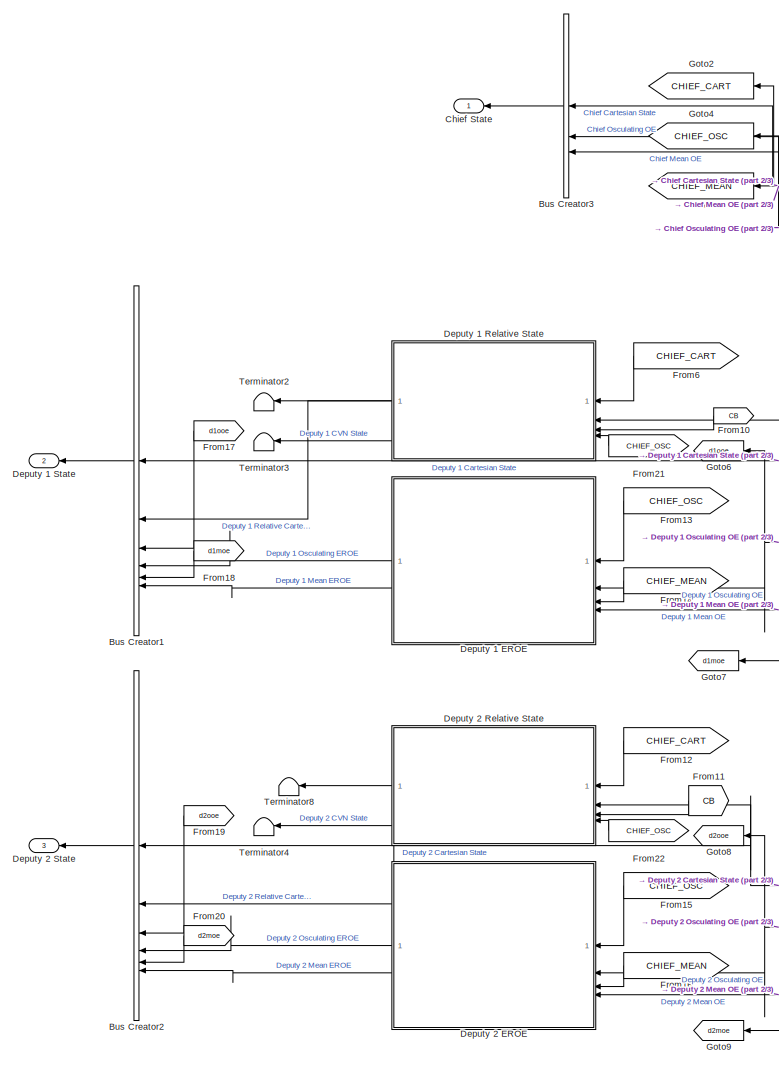
[diagram: root canvas - part 1/3, left side, full height]
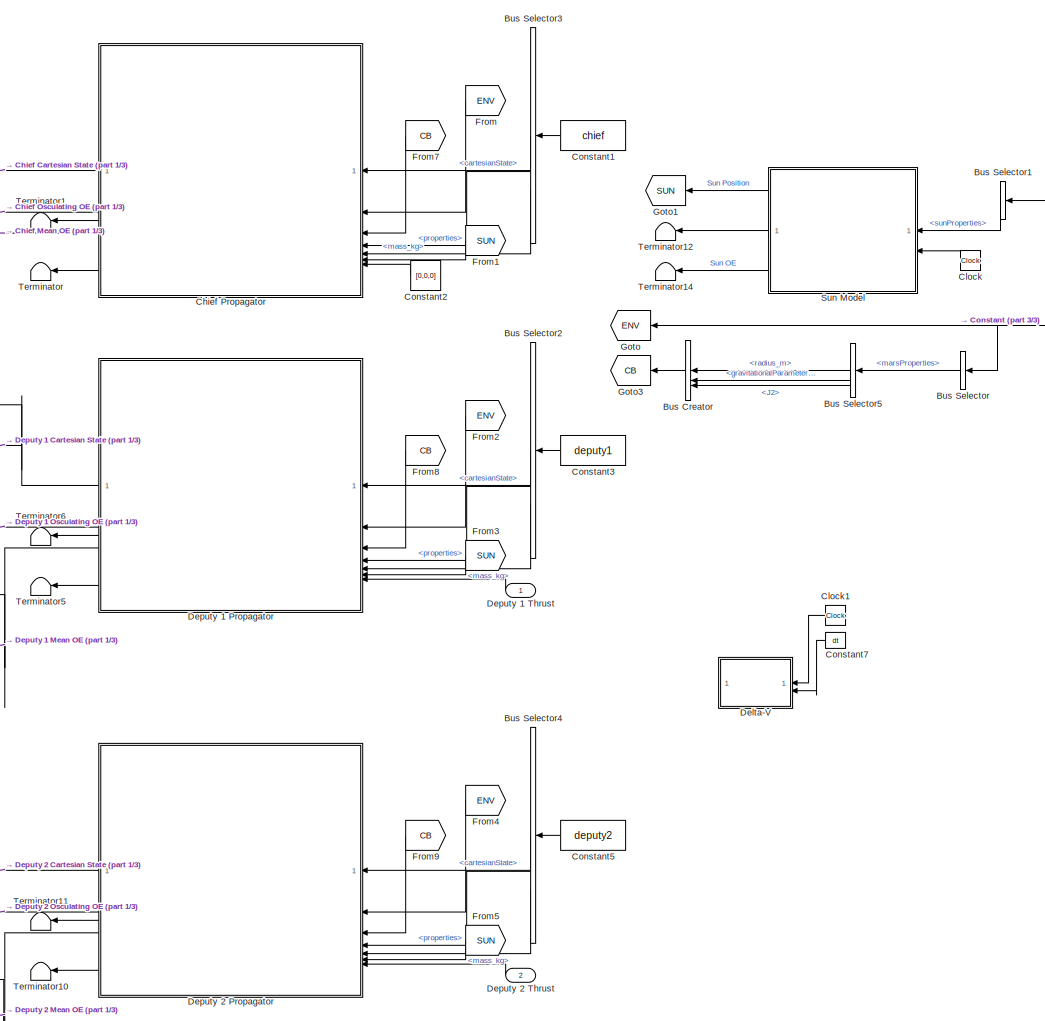
[diagram: root canvas - part 2/3, center side, full height]
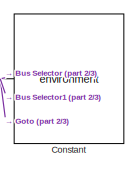
[diagram: root canvas - part 3/3, top right region]
MODEL slx_c1429a69bf25
KIND model
CONFIG AbsTol = auto
CONFIG EnableMultiTasking = off
CONFIG FixedStep = dt
CONFIG MaxStep = max_step_size
CONFIG MinStep = auto
CONFIG RelTol = relative_tolerance
CONFIG SampleTimeConstraint = Unconstrained
CONFIG SolverName = ode4
CONFIG StartTime = 0.0
CONFIG StopTime = t_duration
BLOCK [BusCreator] Bus Creator
  DisplayOption = bar
  InheritFromInputs = off
  Inputs = 3
  NonVirtualBus = on
  OutDataTypeStr = Bus: planetProperties
BLOCK [BusCreator] Bus Creator1
  DisplayOption = bar
  InheritFromInputs = off
  Inputs = 6
  NonVirtualBus = on
  OutDataTypeStr = Bus: deputy1state
BLOCK [BusCreator] Bus Creator2
  DisplayOption = bar
  InheritFromInputs = off
  Inputs = 6
  NonVirtualBus = on
  OutDataTypeStr = Bus: deputy2state
BLOCK [BusCreator] Bus Creator3
  DisplayOption = bar
  InheritFromInputs = off
  Inputs = 3
  NonVirtualBus = on
  OutDataTypeStr = Bus: chiefState
BLOCK [BusSelector] Bus Selector
  OutputSignals = marsProperties
BLOCK [BusSelector] Bus Selector1
  OutputSignals = sunProperties
BLOCK [BusSelector] Bus Selector2
  OutputSignals = initialConditions.cartesianState,properties,initialConditions.mass_kg
BLOCK [BusSelector] Bus Selector3
  OutputSignals = initialConditions.cartesianState,properties,initialConditions.mass_kg
BLOCK [BusSelector] Bus Selector4
  OutputSignals = initialConditions.cartesianState,properties,initialConditions.mass_kg
BLOCK [BusSelector] Bus Selector5
  OutputSignals = radius_m,gravitationalParameter_m3_s2,J2
BLOCK [ModelReference] Chief Propagator
  ModelNameDialog = PerturbedCartesianOrbitPropagator
  ModelReferenceVersion = 1.197
BLOCK [Outport] Chief State
  BusOutputAsStruct = on
  OutDataTypeStr = Bus: chiefState
BLOCK [Clock] Clock
BLOCK [Clock] Clock1
  Commented = on
BLOCK [Constant] Constant
  OutDataTypeStr = Bus: environmentBus
  Value = environment
BLOCK [Constant] Constant1
  OutDataTypeStr = Bus: chiefBus
  Value = chief
BLOCK [Constant] Constant2
  Value = [0,0,0]
BLOCK [Constant] Constant3
  OutDataTypeStr = Bus: deputy1Bus
  Value = deputy1
BLOCK [Constant] Constant5
  OutDataTypeStr = Bus: deputy2Bus
  Value = deputy2
BLOCK [Constant] Constant7
  Commented = on
  Value = dt
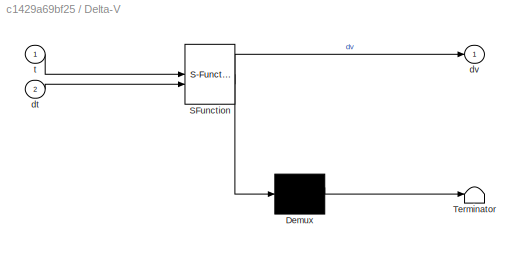
BLOCK [SubSystem] Delta-V
  Commented = on
  ErrorFcn = Stateflow.Translate.translate
  LibrarySourceBlock = simulink/User-Defined\nFunctions/MATLAB Function
  PermitHierarchicalResolution = ExplicitOnly
  SFBlockType = MATLAB Function
  TreatAsAtomicUnit = on
BLOCK [Demux] Delta-V/ Demux 
  Outputs = 1
BLOCK [S-Function] Delta-V/ SFunction 
  EnableBusSupport = on
  FunctionName = sf_sfun
  PortCounts = [2 2]
  SFcnIsStateOwnerBlock = off
  SFunctionDeploymentMode = off
  Tag = Stateflow S-Function 2
BLOCK [Terminator] Delta-V/ Terminator 
BLOCK [Inport] Delta-V/dt
  Port = 2
BLOCK [Outport] Delta-V/dv
BLOCK [Inport] Delta-V/t
BLOCK [ModelReference] Deputy 1 EROE
  ModelNameDialog = singularEROE
  ModelReferenceVersion = 1.18
BLOCK [ModelReference] Deputy 1 Propagator
  ModelNameDialog = PerturbedCartesianOrbitPropagator
  ModelReferenceVersion = 1.197
BLOCK [ModelReference] Deputy 1 Relative State
  ModelNameDialog = cartesianDifference
  ModelReferenceVersion = 1.42
BLOCK [Outport] Deputy 1 State
  BusOutputAsStruct = on
  OutDataTypeStr = Bus: deputy1state
  Port = 2
BLOCK [Inport] Deputy 1 Thrust
BLOCK [ModelReference] Deputy 2 EROE
  ModelNameDialog = singularEROE
  ModelReferenceVersion = 1.18
BLOCK [ModelReference] Deputy 2 Propagator
  ModelNameDialog = PerturbedCartesianOrbitPropagator
  ModelReferenceVersion = 1.197
BLOCK [ModelReference] Deputy 2 Relative State
  ModelNameDialog = cartesianDifference
  ModelReferenceVersion = 1.42
BLOCK [Outport] Deputy 2 State
  BusOutputAsStruct = on
  OutDataTypeStr = Bus: deputy2state
  Port = 3
BLOCK [Inport] Deputy 2 Thrust
  Port = 2
BLOCK [From] From
  GotoTag = ENV
BLOCK [From] From1
  GotoTag = SUN
BLOCK [From] From10
  GotoTag = CB
BLOCK [From] From11
  GotoTag = CB
BLOCK [From] From12
  GotoTag = CHIEF_CART
BLOCK [From] From13
  GotoTag = CHIEF_OSC
BLOCK [From] From14
  GotoTag = CHIEF_MEAN
BLOCK [From] From15
  GotoTag = CHIEF_OSC
BLOCK [From] From16
  GotoTag = CHIEF_MEAN
BLOCK [From] From17
  GotoTag = d1ooe
BLOCK [From] From18
  GotoTag = d1moe
BLOCK [From] From19
  GotoTag = d2ooe
BLOCK [From] From2
  GotoTag = ENV
BLOCK [From] From20
  GotoTag = d2moe
BLOCK [From] From21
  GotoTag = CHIEF_OSC
BLOCK [From] From22
  GotoTag = CHIEF_OSC
BLOCK [From] From3
  GotoTag = SUN
BLOCK [From] From4
  GotoTag = ENV
BLOCK [From] From5
  GotoTag = SUN
BLOCK [From] From6
  GotoTag = CHIEF_CART
BLOCK [From] From7
  GotoTag = CB
BLOCK [From] From8
  GotoTag = CB
BLOCK [From] From9
  GotoTag = CB
BLOCK [Goto] Goto
  GotoTag = ENV
BLOCK [Goto] Goto1
  GotoTag = SUN
BLOCK [Goto] Goto2
  GotoTag = CHIEF_CART
BLOCK [Goto] Goto3
  GotoTag = CB
BLOCK [Goto] Goto4
  GotoTag = CHIEF_OSC
BLOCK [Goto] Goto5
  GotoTag = CHIEF_MEAN
BLOCK [Goto] Goto6
  GotoTag = d1ooe
BLOCK [Goto] Goto7
  GotoTag = d1moe
BLOCK [Goto] Goto8
  GotoTag = d2ooe
BLOCK [Goto] Goto9
  GotoTag = d2moe
BLOCK [ModelReference] Sun Model
  ModelNameDialog = sun
  ModelReferenceVersion = 1.22
BLOCK [Terminator] Terminator
BLOCK [Terminator] Terminator1
BLOCK [Terminator] Terminator10
BLOCK [Terminator] Terminator11
BLOCK [Terminator] Terminator12
BLOCK [Terminator] Terminator14
BLOCK [Terminator] Terminator2
BLOCK [Terminator] Terminator3
BLOCK [Terminator] Terminator4
BLOCK [Terminator] Terminator5
BLOCK [Terminator] Terminator6
BLOCK [Terminator] Terminator8
LINE Bus Creator1:1 -> Deputy 1 State:1
LINE Bus Creator2:1 -> Deputy 2 State:1
LINE Bus Creator3:1 -> Chief State:1
LINE Bus Creator:1 -> Goto3:1
LINE Bus Selector1:1 -> Sun Model:1
LINE Bus Selector2:1 -> Deputy 1 Propagator:1
LINE Bus Selector2:2 -> Deputy 1 Propagator:4
LINE Bus Selector2:3 -> Deputy 1 Propagator:5
LINE Bus Selector3:1 -> Chief Propagator:1
LINE Bus Selector3:2 -> Chief Propagator:4
LINE Bus Selector3:3 -> Chief Propagator:5
LINE Bus Selector4:1 -> Deputy 2 Propagator:1
LINE Bus Selector4:2 -> Deputy 2 Propagator:4
LINE Bus Selector4:3 -> Deputy 2 Propagator:5
LINE Bus Selector5:1 -> Bus Creator:1
LINE Bus Selector5:2 -> Bus Creator:2
LINE Bus Selector5:3 -> Bus Creator:3
LINE Bus Selector:1 -> Bus Selector5:1
NET Chief Propagator:1 -> Bus Creator3:1, Goto2:1
NET Chief Propagator:2 -> Bus Creator3:2, Goto4:1
NET Chief Propagator:3 -> Bus Creator3:3, Goto5:1
LINE Chief Propagator:4 -> Terminator1:1
LINE Chief Propagator:5 -> Terminator:1
LINE Clock1:1 -> Delta-V:1
LINE Clock:1 -> Sun Model:2
LINE Constant1:1 -> Bus Selector3:1
LINE Constant2:1 -> Chief Propagator:7
LINE Constant3:1 -> Bus Selector2:1
LINE Constant5:1 -> Bus Selector4:1
LINE Constant7:1 -> Delta-V:2
NET Constant:1 -> Bus Selector1:1, Bus Selector:1, Goto:1
LINE Deputy 1 EROE:1 -> Bus Creator1:4
LINE Deputy 1 EROE:2 -> Bus Creator1:6
NET Deputy 1 Propagator:1 -> Bus Creator1:1, Deputy 1 Relative State:2
NET Deputy 1 Propagator:2 -> Deputy 1 EROE:2, Goto6:1
NET Deputy 1 Propagator:3 -> Deputy 1 EROE:4, Goto7:1
LINE Deputy 1 Propagator:4 -> Terminator6:1
LINE Deputy 1 Propagator:5 -> Terminator5:1
LINE Deputy 1 Relative State:1 -> Bus Creator1:2
LINE Deputy 1 Relative State:2 -> Terminator2:1
LINE Deputy 1 Relative State:3 -> Terminator3:1
LINE Deputy 1 Thrust:1 -> Deputy 1 Propagator:7
LINE Deputy 2 EROE:1 -> Bus Creator2:4
LINE Deputy 2 EROE:2 -> Bus Creator2:6
NET Deputy 2 Propagator:1 -> Bus Creator2:1, Deputy 2 Relative State:2
NET Deputy 2 Propagator:2 -> Deputy 2 EROE:2, Goto8:1
NET Deputy 2 Propagator:3 -> Deputy 2 EROE:4, Goto9:1
LINE Deputy 2 Propagator:4 -> Terminator11:1
LINE Deputy 2 Propagator:5 -> Terminator10:1
LINE Deputy 2 Relative State:1 -> Bus Creator2:2
LINE Deputy 2 Relative State:2 -> Terminator8:1
LINE Deputy 2 Relative State:3 -> Terminator4:1
LINE Deputy 2 Thrust:1 -> Deputy 2 Propagator:7
LINE From10:1 -> Deputy 1 Relative State:3
LINE From11:1 -> Deputy 2 Relative State:3
LINE From12:1 -> Deputy 2 Relative State:1
LINE From13:1 -> Deputy 1 EROE:1
LINE From14:1 -> Deputy 1 EROE:3
LINE From15:1 -> Deputy 2 EROE:1
LINE From16:1 -> Deputy 2 EROE:3
LINE From17:1 -> Bus Creator1:3
LINE From18:1 -> Bus Creator1:5
LINE From19:1 -> Bus Creator2:3
LINE From1:1 -> Chief Propagator:6
LINE From20:1 -> Bus Creator2:5
LINE From21:1 -> Deputy 1 Relative State:4
LINE From22:1 -> Deputy 2 Relative State:4
LINE From2:1 -> Deputy 1 Propagator:2
LINE From3:1 -> Deputy 1 Propagator:6
LINE From4:1 -> Deputy 2 Propagator:2
LINE From5:1 -> Deputy 2 Propagator:6
LINE From6:1 -> Deputy 1 Relative State:1
LINE From7:1 -> Chief Propagator:3
LINE From8:1 -> Deputy 1 Propagator:3
LINE From9:1 -> Deputy 2 Propagator:3
LINE From:1 -> Chief Propagator:2
LINE Sun Model:1 -> Goto1:1
LINE Sun Model:2 -> Terminator12:1
LINE Sun Model:3 -> Terminator14:1
note: NET lines group one-source signal fan-out (src -> all destinations, sorted); 1:1 wires keep LINE
CHART Delta-V states=1 transitions=1
  STATE_LABEL 'eML_blk_kernel()'
  STATE_LABEL 'SCRIPT:\nfunction dv = fcn(t, dt)\n\nif abs(t-5000) <= dt\n    dv = [1;0;0];\nelse\n    dv = [0;0;0];\nend\n\nend\n'
CHART  states=0 transitions=0
